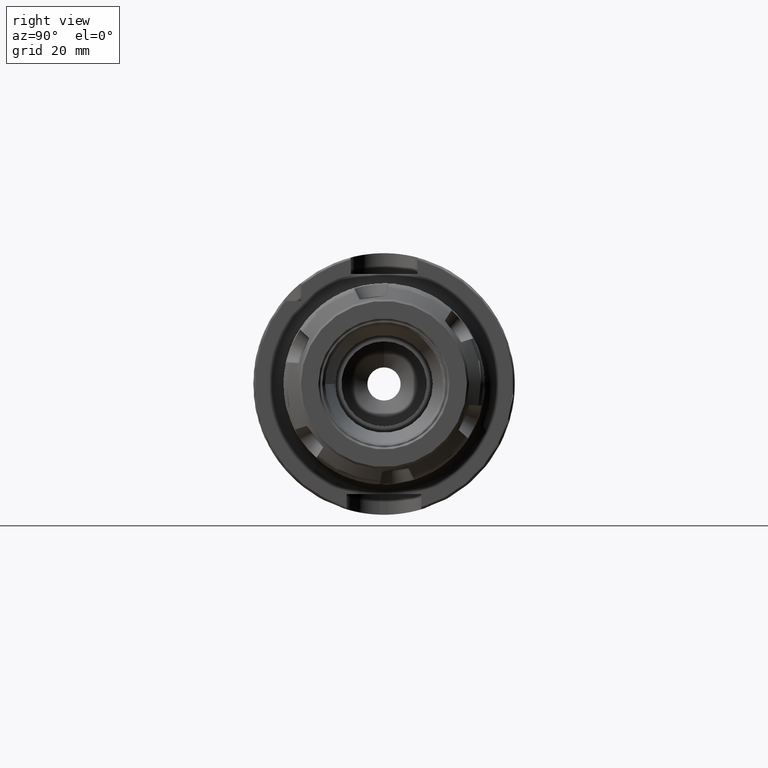
[diagram: clean part render]
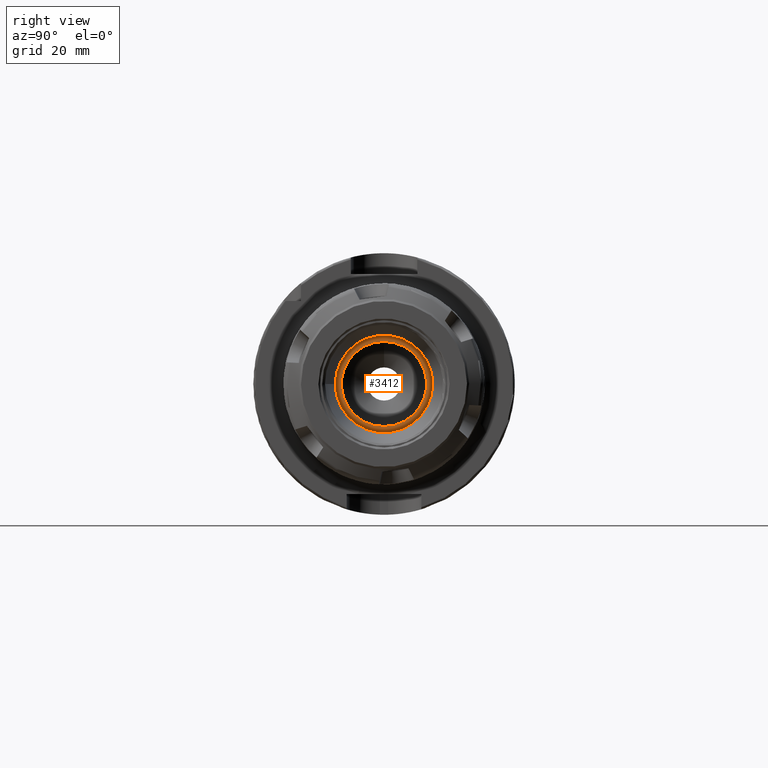
[diagram: same view with one face highlighted and labeled with its STEP entity id]
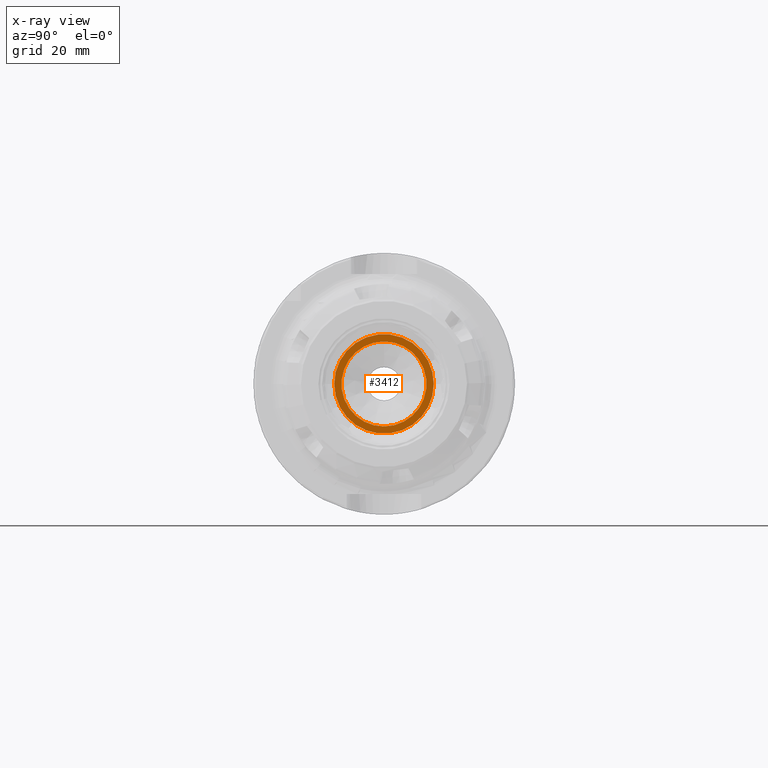
[diagram: x-ray of the same camera — body ghosted, the highlighted face saturated]
A machine part, right view. The second image highlights one B-rep face of the part: STEP entity #3412.
The next image is the same camera in x-ray: the body ghosted, the highlighted face saturated — about 0% of this face is hidden behind the body in this view.
In plain terms, the highlighted planar face has unit normal (1, 0, 0).
Its self-contained STEP definition (entity closure, byte-faithful):
#175=FACE_BOUND('',#567,.T.);
#192=PLANE('',#3715);
#363=FACE_OUTER_BOUND('',#566,.T.);
#566=EDGE_LOOP('',(#2346));
#567=EDGE_LOOP('',(#2347));
#1142=CIRCLE('',#3669,10.2489);
#1173=CIRCLE('',#3714,12.);
#1358=VERTEX_POINT('',#5146);
#1392=VERTEX_POINT('',#5260);
#1716=EDGE_CURVE('',#1358,#1358,#1142,.T.);
#1764=EDGE_CURVE('',#1392,#1392,#1173,.T.);
#2346=ORIENTED_EDGE('',*,*,#1764,.T.);
#2347=ORIENTED_EDGE('',*,*,#1716,.T.);
#3412=ADVANCED_FACE('',(#363,#175),#192,.T.);
#3669=AXIS2_PLACEMENT_3D('',#5147,#4106,#4107);
#3714=AXIS2_PLACEMENT_3D('',#5262,#4210,#4211);
#3715=AXIS2_PLACEMENT_3D('',#5263,#4212,#4213);
#4106=DIRECTION('center_axis',(-1.,0.,0.));
#4107=DIRECTION('ref_axis',(0.,0.,-1.));
#4210=DIRECTION('center_axis',(1.,0.,0.));
#4211=DIRECTION('ref_axis',(0.,0.,-1.));
#4212=DIRECTION('center_axis',(1.,0.,0.));
#4213=DIRECTION('ref_axis',(0.,0.,-1.));
#5146=CARTESIAN_POINT('',(60.4,1.25512825797813E-15,10.2489));
#5147=CARTESIAN_POINT('Origin',(60.4,0.,0.));
#5260=CARTESIAN_POINT('',(60.4,-12.,-1.46957615897682E-15));
#5262=CARTESIAN_POINT('Origin',(60.4,0.,0.));
#5263=CARTESIAN_POINT('Origin',(60.4,0.,0.));